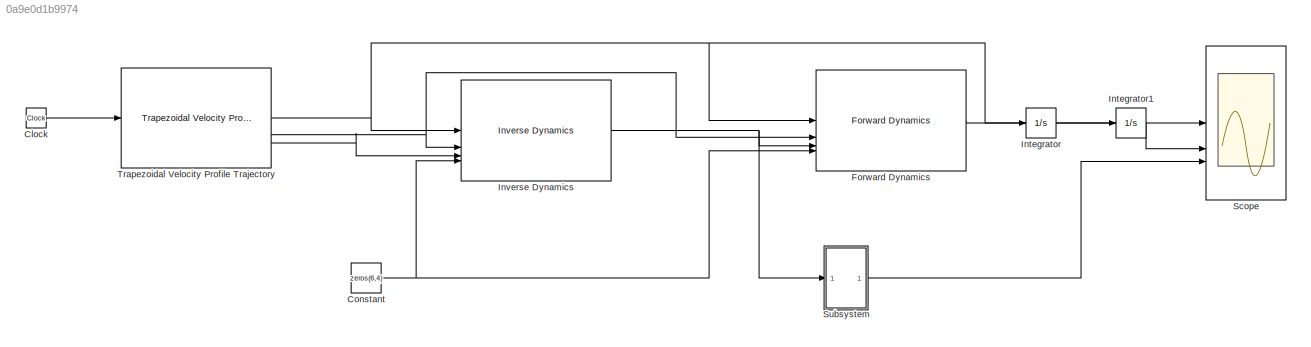
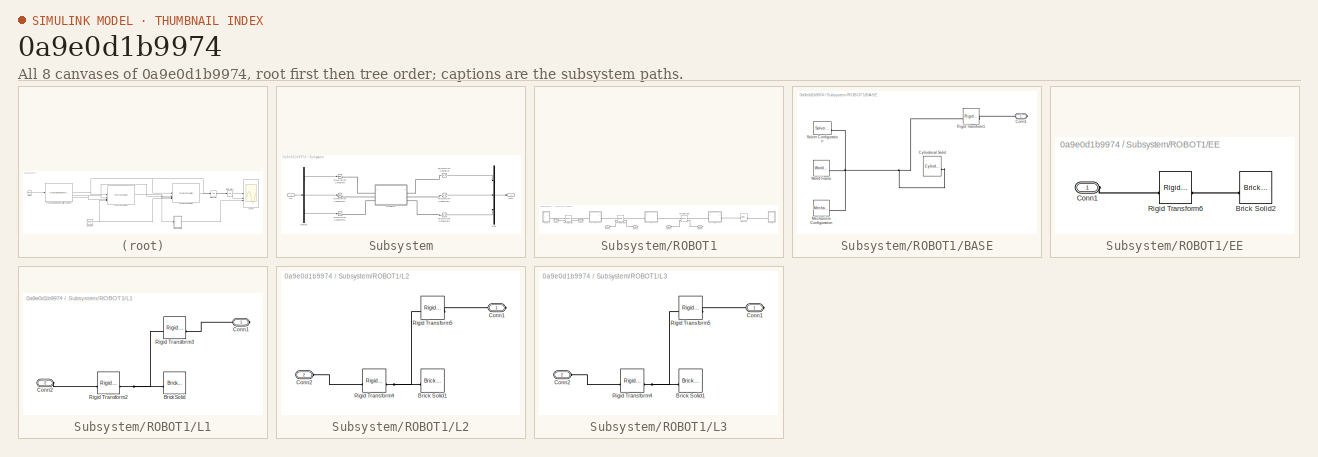
[diagram: thumbnail index - all 8 canvases of the model, root first then tree order]
MODEL slx_0a9e0d1b9974
KIND model
CONFIG AbsTol = auto
CONFIG EnableMultiTasking = off
CONFIG FixedStep = auto
CONFIG MaxStep = auto
CONFIG MinStep = auto
CONFIG RelTol = 1e-3
CONFIG SampleTimeConstraint = Unconstrained
CONFIG SolverName = VariableStepAuto
CONFIG StartTime = 0.0
CONFIG StopTime = 10.0
BLOCK [Clock] Clock
BLOCK [Constant] Constant
  Value = zeros(6,4)
BLOCK [Reference] Forward Dynamics  REF=robotmaniplib/Forward Dynamics
  SourceBlock = robotmaniplib/Forward Dynamics
  SourceType = Forward Dynamics
BLOCK [Integrator] Integrator
BLOCK [Integrator] Integrator1
BLOCK [Reference] Inverse Dynamics  REF=robotmaniplib/Inverse Dynamics
  SourceBlock = robotmaniplib/Inverse Dynamics
  SourceType = Inverse Dynamics
BLOCK [Scope] Scope
  Floating = off
  NumInputPorts = 3
  ScopeSpecificationString = Simulink.scopes.TimeScopeBlockCfg('CurrentConfiguration', extmgr.ConfigurationSet(extmgr.Configuration('Core','General UI',true,'ShowMainToolbar',false),extmgr.Configuration('Core','Source UI',true),extmgr.Configuration('Sources','WiredSimulink',true),extmgr.Configuration('Visuals','Time Domain',true,'SerializedDisplays',{struct('MinYLimReal','-2','MaxYLimReal','2','YLabelReal','','MinYLimMag','0....<+3015ch>
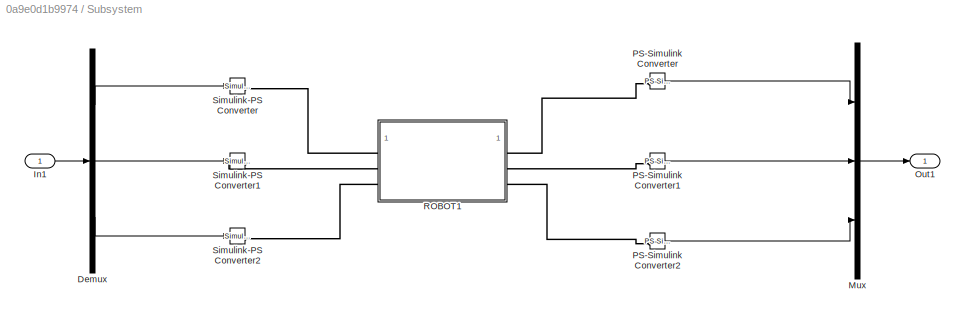
BLOCK [SubSystem] Subsystem
BLOCK [Demux] Subsystem/Demux
  Outputs = 3
BLOCK [Inport] Subsystem/In1
BLOCK [Mux] Subsystem/Mux
  DisplayOption = bar
  Inputs = 3
BLOCK [Outport] Subsystem/Out1
BLOCK [Reference] Subsystem/PS-Simulink Converter  REF=nesl_utility/PS-Simulink
Converter
  SourceBlock = nesl_utility/PS-Simulink\nConverter
  SourceType = PS-Simulink\nConverter
BLOCK [Reference] Subsystem/PS-Simulink Converter1  REF=nesl_utility/PS-Simulink
Converter
  SourceBlock = nesl_utility/PS-Simulink\nConverter
  SourceType = PS-Simulink\nConverter
BLOCK [Reference] Subsystem/PS-Simulink Converter2   REF=nesl_utility/PS-Simulink
Converter
  SourceBlock = nesl_utility/PS-Simulink\nConverter
  SourceType = PS-Simulink\nConverter
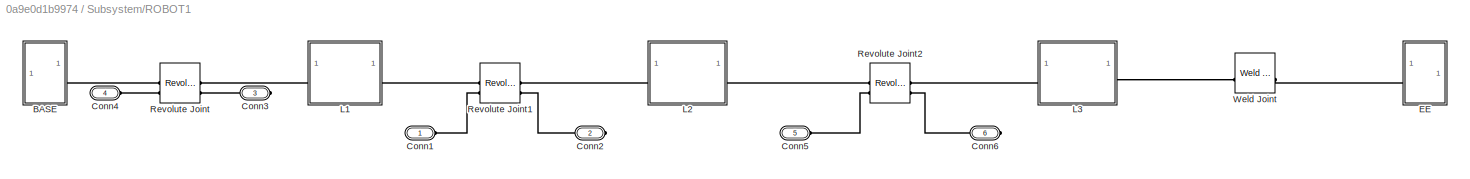
BLOCK [SubSystem] Subsystem/ROBOT1
BLOCK [SubSystem] Subsystem/ROBOT1/BASE
BLOCK [PMIOPort] Subsystem/ROBOT1/BASE/Conn1
  Side = Right
BLOCK [Reference] Subsystem/ROBOT1/BASE/Cylindrical Solid  REF=sm_lib/Body Elements/Cylindrical Solid
  SourceBlock = sm_lib/Body Elements/Cylindrical Solid
  SourceType = Cylindrical Solid
BLOCK [Reference] Subsystem/ROBOT1/BASE/Mechanism Configuration  REF=sm_lib/Utilities/Mechanism
Configuration
  SourceBlock = sm_lib/Utilities/Mechanism\nConfiguration
  SourceType = Mechanism\nConfiguration
BLOCK [Reference] Subsystem/ROBOT1/BASE/Rigid Transform1  REF=sm_lib/Frames and
Transforms/Rigid
Transform
  SourceBlock = sm_lib/Frames and\nTransforms/Rigid\nTransform
  SourceType = Rigid\nTransform
BLOCK [Reference] Subsystem/ROBOT1/BASE/Solver Configuration  REF=nesl_utility/Solver
Configuration
  NameLocation = left
  SourceBlock = nesl_utility/Solver\nConfiguration
  SourceType = Solver\nConfiguration
BLOCK [Reference] Subsystem/ROBOT1/BASE/World Frame  REF=sm_lib/Frames and
Transforms/World Frame
  SourceBlock = sm_lib/Frames and\nTransforms/World Frame
  SourceType = World Frame
BLOCK [PMIOPort] Subsystem/ROBOT1/Conn1
  Side = Left
BLOCK [PMIOPort] Subsystem/ROBOT1/Conn2
  Port = 2
  Side = Right
BLOCK [PMIOPort] Subsystem/ROBOT1/Conn3
  Port = 3
  Side = Right
BLOCK [PMIOPort] Subsystem/ROBOT1/Conn4
  Port = 4
  Side = Left
BLOCK [PMIOPort] Subsystem/ROBOT1/Conn5
  Port = 5
  Side = Left
BLOCK [PMIOPort] Subsystem/ROBOT1/Conn6
  Port = 6
  Side = Right
BLOCK [SubSystem] Subsystem/ROBOT1/EE
BLOCK [Reference] Subsystem/ROBOT1/EE/Brick Solid2  REF=sm_lib/Body Elements/Brick Solid
  SourceBlock = sm_lib/Body Elements/Brick Solid
  SourceType = Brick Solid
BLOCK [PMIOPort] Subsystem/ROBOT1/EE/Conn1
  Side = Left
BLOCK [Reference] Subsystem/ROBOT1/EE/Rigid Transform6  REF=sm_lib/Frames and
Transforms/Rigid
Transform
  SourceBlock = sm_lib/Frames and\nTransforms/Rigid\nTransform
  SourceType = Rigid\nTransform
BLOCK [SubSystem] Subsystem/ROBOT1/L1
BLOCK [Reference] Subsystem/ROBOT1/L1/Brick Solid  REF=sm_lib/Body Elements/Brick Solid
  SourceBlock = sm_lib/Body Elements/Brick Solid
  SourceType = Brick Solid
BLOCK [PMIOPort] Subsystem/ROBOT1/L1/Conn1
  Side = Right
BLOCK [PMIOPort] Subsystem/ROBOT1/L1/Conn2
  Port = 2
  Side = Left
BLOCK [Reference] Subsystem/ROBOT1/L1/Rigid Transform2  REF=sm_lib/Frames and
Transforms/Rigid
Transform
  SourceBlock = sm_lib/Frames and\nTransforms/Rigid\nTransform
  SourceType = Rigid\nTransform
BLOCK [Reference] Subsystem/ROBOT1/L1/Rigid Transform3  REF=sm_lib/Frames and
Transforms/Rigid
Transform
  SourceBlock = sm_lib/Frames and\nTransforms/Rigid\nTransform
  SourceType = Rigid\nTransform
BLOCK [SubSystem] Subsystem/ROBOT1/L2
BLOCK [Reference] Subsystem/ROBOT1/L2/Brick Solid1  REF=sm_lib/Body Elements/Brick Solid
  SourceBlock = sm_lib/Body Elements/Brick Solid
  SourceType = Brick Solid
BLOCK [PMIOPort] Subsystem/ROBOT1/L2/Conn1
  Side = Right
BLOCK [PMIOPort] Subsystem/ROBOT1/L2/Conn2
  Port = 2
  Side = Left
BLOCK [Reference] Subsystem/ROBOT1/L2/Rigid Transform4  REF=sm_lib/Frames and
Transforms/Rigid
Transform
  SourceBlock = sm_lib/Frames and\nTransforms/Rigid\nTransform
  SourceType = Rigid\nTransform
BLOCK [Reference] Subsystem/ROBOT1/L2/Rigid Transform5  REF=sm_lib/Frames and
Transforms/Rigid
Transform
  SourceBlock = sm_lib/Frames and\nTransforms/Rigid\nTransform
  SourceType = Rigid\nTransform
BLOCK [SubSystem] Subsystem/ROBOT1/L3
BLOCK [Reference] Subsystem/ROBOT1/L3/Brick Solid1  REF=sm_lib/Body Elements/Brick Solid
  SourceBlock = sm_lib/Body Elements/Brick Solid
  SourceType = Brick Solid
BLOCK [PMIOPort] Subsystem/ROBOT1/L3/Conn1
  Side = Right
BLOCK [PMIOPort] Subsystem/ROBOT1/L3/Conn2
  Port = 2
  Side = Left
BLOCK [Reference] Subsystem/ROBOT1/L3/Rigid Transform4  REF=sm_lib/Frames and
Transforms/Rigid
Transform
  SourceBlock = sm_lib/Frames and\nTransforms/Rigid\nTransform
  SourceType = Rigid\nTransform
BLOCK [Reference] Subsystem/ROBOT1/L3/Rigid Transform5  REF=sm_lib/Frames and
Transforms/Rigid
Transform
  SourceBlock = sm_lib/Frames and\nTransforms/Rigid\nTransform
  SourceType = Rigid\nTransform
BLOCK [Reference] Subsystem/ROBOT1/Revolute Joint  REF=sm_lib/Joints/Revolute Joint
  SourceBlock = sm_lib/Joints/Revolute Joint
  SourceType = Revolute Joint
BLOCK [Reference] Subsystem/ROBOT1/Revolute Joint1  REF=sm_lib/Joints/Revolute Joint
  SourceBlock = sm_lib/Joints/Revolute Joint
  SourceType = Revolute Joint
BLOCK [Reference] Subsystem/ROBOT1/Revolute Joint2  REF=sm_lib/Joints/Revolute Joint
  NameLocation = top
  SourceBlock = sm_lib/Joints/Revolute Joint
  SourceType = Revolute Joint
BLOCK [Reference] Subsystem/ROBOT1/Weld Joint  REF=sm_lib/Joints/Weld Joint
  SourceBlock = sm_lib/Joints/Weld Joint
  SourceType = Weld Joint
BLOCK [Reference] Subsystem/Simulink-PS Converter  REF=nesl_utility/Simulink-PS
Converter
  SourceBlock = nesl_utility/Simulink-PS\nConverter
  SourceType = Simulink-PS\nConverter
BLOCK [Reference] Subsystem/Simulink-PS Converter1  REF=nesl_utility/Simulink-PS
Converter
  SourceBlock = nesl_utility/Simulink-PS\nConverter
  SourceType = Simulink-PS\nConverter
BLOCK [Reference] Subsystem/Simulink-PS Converter2  REF=nesl_utility/Simulink-PS
Converter
  SourceBlock = nesl_utility/Simulink-PS\nConverter
  SourceType = Simulink-PS\nConverter
BLOCK [Reference] Trapezoidal Velocity Profile Trajectory  REF=robotcorelib/Trapezoidal Velocity Profile Trajectory
  LibrarySourceBlock = robotutilslib/Trapezoidal Velocity Profile Trajectory
  SourceBlock = robotcorelib/Trapezoidal Velocity Profile Trajectory
  SourceType = robotics.slcore.internal.block.TrapVelTrajSys
LINE Clock:1 -> Trapezoidal Velocity Profile Trajectory:1
NET Constant:1 -> Forward Dynamics:4, Inverse Dynamics:4
LINE Forward Dynamics:1 -> Integrator:1
LINE Integrator1:1 -> Scope:2
LINE Integrator:1 -> Integrator1:1
NET Inverse Dynamics:1 -> Forward Dynamics:3, Subsystem:1
LINE Subsystem/Demux:1 -> Subsystem/Simulink-PS Converter:1
LINE Subsystem/Demux:2 -> Subsystem/Simulink-PS Converter1:1
LINE Subsystem/Demux:3 -> Subsystem/Simulink-PS Converter2:1
LINE Subsystem/In1:1 -> Subsystem/Demux:1
LINE Subsystem/Mux:1 -> Subsystem/Out1:1
LINE Subsystem/PS-Simulink Converter1:1 -> Subsystem/Mux:2
LINE Subsystem/PS-Simulink Converter2 :1 -> Subsystem/Mux:3
LINE Subsystem/PS-Simulink Converter:1 -> Subsystem/Mux:1
LINE Subsystem:1 -> Scope:3
NET Trapezoidal Velocity Profile Trajectory:1 -> Forward Dynamics:1, Inverse Dynamics:1, Scope:1
NET Trapezoidal Velocity Profile Trajectory:2 -> Forward Dynamics:2, Inverse Dynamics:2
LINE Trapezoidal Velocity Profile Trajectory:3 -> Inverse Dynamics:3
PLINE Subsystem/PS-Simulink Converter1:LConn1 -- Subsystem/ROBOT1:RConn2
PLINE Subsystem/PS-Simulink Converter2 :LConn1 -- Subsystem/ROBOT1:RConn3
PLINE Subsystem/PS-Simulink Converter:LConn1 -- Subsystem/ROBOT1:RConn1
PLINE Subsystem/ROBOT1/BASE/Conn1:RConn1 -- Subsystem/ROBOT1/BASE/Rigid Transform1:RConn1
PNET net1: Subsystem/ROBOT1/BASE/Cylindrical Solid:RConn1 -- Subsystem/ROBOT1/BASE/Mechanism Configuration:RConn1 -- Subsystem/ROBOT1/BASE/Rigid Transform1:LConn1 -- Subsystem/ROBOT1/BASE/Solver Configuration:RConn1 -- Subsystem/ROBOT1/BASE/World Frame:RConn1
PLINE Subsystem/ROBOT1/BASE:RConn1 -- Subsystem/ROBOT1/Revolute Joint:LConn1
PLINE Subsystem/ROBOT1/Conn1:RConn1 -- Subsystem/ROBOT1/Revolute Joint1:LConn2
PLINE Subsystem/ROBOT1/Conn2:RConn1 -- Subsystem/ROBOT1/Revolute Joint1:RConn2
PLINE Subsystem/ROBOT1/Conn3:RConn1 -- Subsystem/ROBOT1/Revolute Joint:RConn2
PLINE Subsystem/ROBOT1/Conn4:RConn1 -- Subsystem/ROBOT1/Revolute Joint:LConn2
PLINE Subsystem/ROBOT1/Conn5:RConn1 -- Subsystem/ROBOT1/Revolute Joint2:LConn2
PLINE Subsystem/ROBOT1/Conn6:RConn1 -- Subsystem/ROBOT1/Revolute Joint2:RConn2
PLINE Subsystem/ROBOT1/EE/Brick Solid2:RConn1 -- Subsystem/ROBOT1/EE/Rigid Transform6:RConn1
PLINE Subsystem/ROBOT1/EE/Conn1:RConn1 -- Subsystem/ROBOT1/EE/Rigid Transform6:LConn1
PLINE Subsystem/ROBOT1/EE:LConn1 -- Subsystem/ROBOT1/Weld Joint:RConn1
PNET net2: Subsystem/ROBOT1/L1/Brick Solid:RConn1 -- Subsystem/ROBOT1/L1/Rigid Transform2:RConn1 -- Subsystem/ROBOT1/L1/Rigid Transform3:LConn1
PLINE Subsystem/ROBOT1/L1/Conn1:RConn1 -- Subsystem/ROBOT1/L1/Rigid Transform3:RConn1
PLINE Subsystem/ROBOT1/L1/Conn2:RConn1 -- Subsystem/ROBOT1/L1/Rigid Transform2:LConn1
PLINE Subsystem/ROBOT1/L1:LConn1 -- Subsystem/ROBOT1/Revolute Joint:RConn1
PLINE Subsystem/ROBOT1/L1:RConn1 -- Subsystem/ROBOT1/Revolute Joint1:LConn1
PNET net3: Subsystem/ROBOT1/L2/Brick Solid1:RConn1 -- Subsystem/ROBOT1/L2/Rigid Transform4:RConn1 -- Subsystem/ROBOT1/L2/Rigid Transform5:LConn1
PLINE Subsystem/ROBOT1/L2/Conn1:RConn1 -- Subsystem/ROBOT1/L2/Rigid Transform5:RConn1
PLINE Subsystem/ROBOT1/L2/Conn2:RConn1 -- Subsystem/ROBOT1/L2/Rigid Transform4:LConn1
PLINE Subsystem/ROBOT1/L2:LConn1 -- Subsystem/ROBOT1/Revolute Joint1:RConn1
PLINE Subsystem/ROBOT1/L2:RConn1 -- Subsystem/ROBOT1/Revolute Joint2:LConn1
PNET net4: Subsystem/ROBOT1/L3/Brick Solid1:RConn1 -- Subsystem/ROBOT1/L3/Rigid Transform4:RConn1 -- Subsystem/ROBOT1/L3/Rigid Transform5:LConn1
PLINE Subsystem/ROBOT1/L3/Conn1:RConn1 -- Subsystem/ROBOT1/L3/Rigid Transform5:RConn1
PLINE Subsystem/ROBOT1/L3/Conn2:RConn1 -- Subsystem/ROBOT1/L3/Rigid Transform4:LConn1
PLINE Subsystem/ROBOT1/L3:LConn1 -- Subsystem/ROBOT1/Revolute Joint2:RConn1
PLINE Subsystem/ROBOT1/L3:RConn1 -- Subsystem/ROBOT1/Weld Joint:LConn1
PLINE Subsystem/ROBOT1:LConn1 -- Subsystem/Simulink-PS Converter:RConn1
PLINE Subsystem/ROBOT1:LConn2 -- Subsystem/Simulink-PS Converter1:RConn1
PLINE Subsystem/ROBOT1:LConn3 -- Subsystem/Simulink-PS Converter2:RConn1
note: NET lines group one-source signal fan-out (src -> all destinations, sorted); 1:1 wires keep LINE; PNET lines group multi-terminal physical nets as a canonical sorted terminal list (undirected conserving connections); 2-terminal nets keep the pairwise PLINE form
